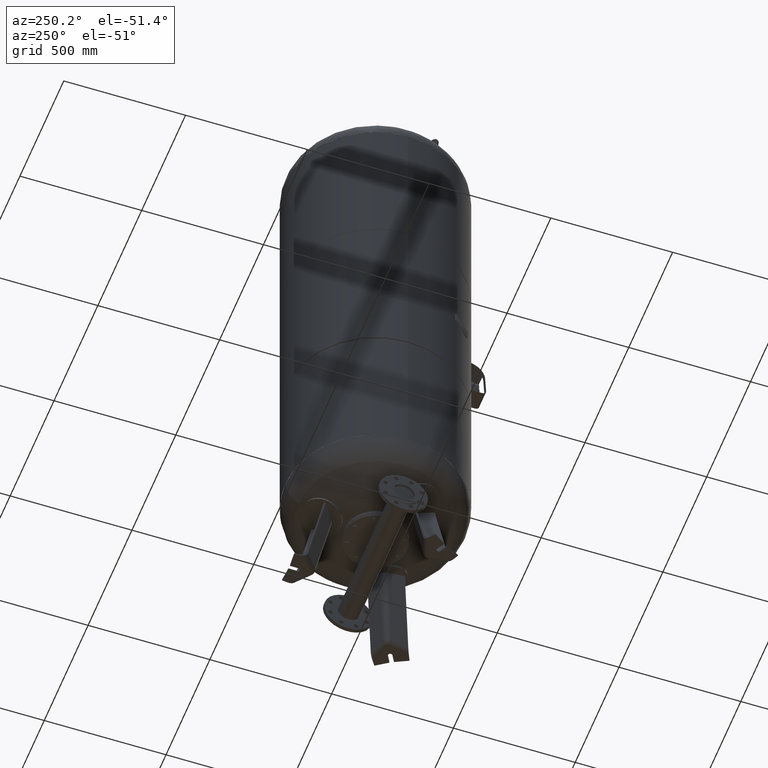
[diagram: clean part render]
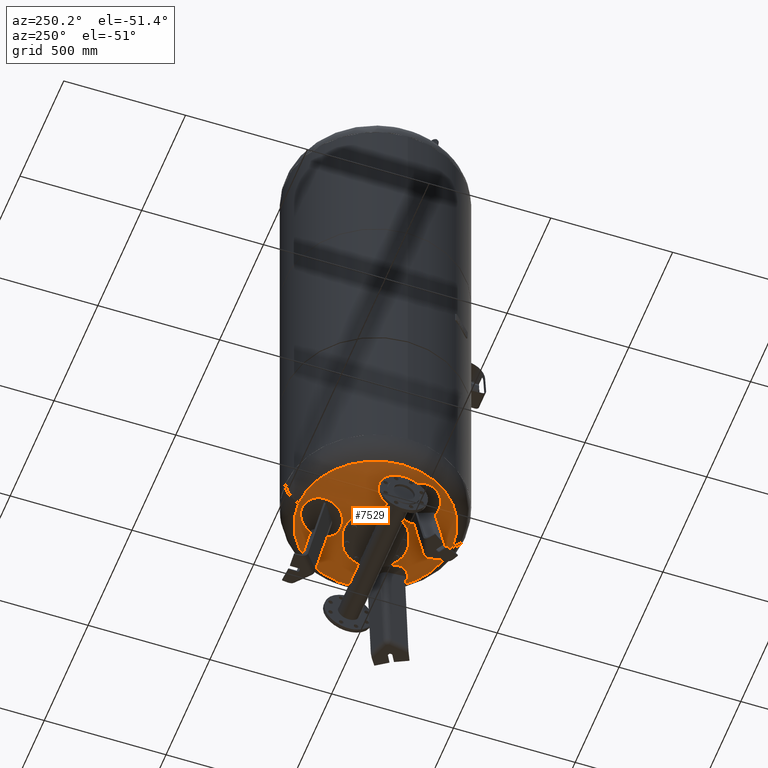
[diagram: same view with one face highlighted and labeled with its STEP entity id]
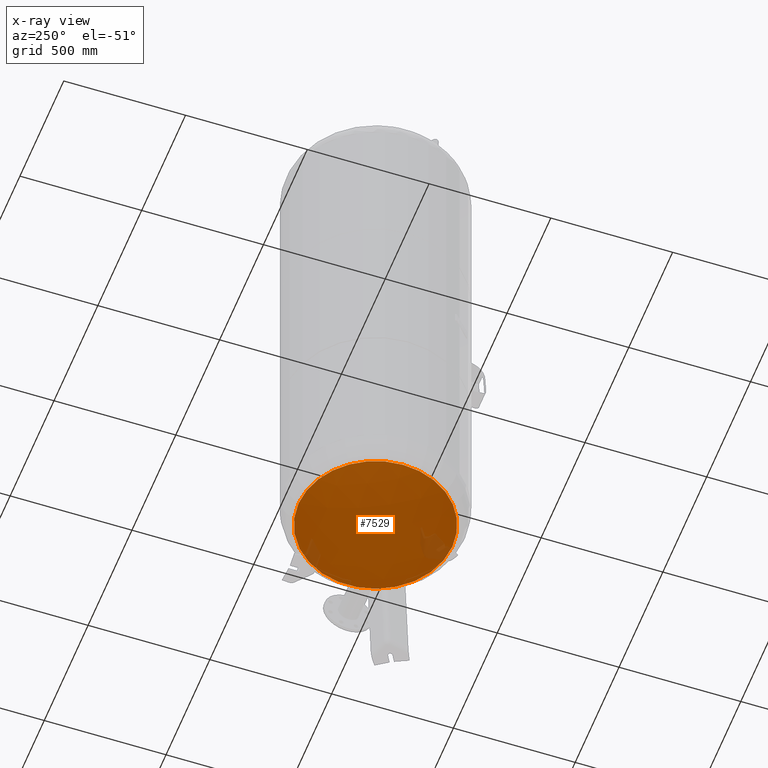
[diagram: x-ray of the same camera — body ghosted, the highlighted face saturated]
A machine part, auxiliary view. The second image highlights one B-rep face of the part: STEP entity #7529.
The next image is the same camera in x-ray: the body ghosted, the highlighted face saturated — about 5% of this face is hidden behind the body in this view.
In plain terms, the highlighted spherical surface has radius 594 mm.
Its self-contained STEP definition (entity closure, byte-faithful):
#7468=CARTESIAN_POINT('',(0.0,-315.931034482758610,413.985505725079410));
#7469=VERTEX_POINT('',#7468);
#7485=CARTESIAN_POINT('',(-3.868912E-014,315.931034482758610,413.985505725079630));
#7486=VERTEX_POINT('',#7485);
#7494=CARTESIAN_POINT('',(-315.931034482758610,-1.671377E-014,413.985505725079520));
#7495=VERTEX_POINT('',#7494);
#7496=CARTESIAN_POINT('',(0.0,-1.671377E-014,413.985505725079520));
#7497=DIRECTION('',(0.0,0.0,1.0));
#7498=DIRECTION('',(-1.0,0.0,0.0));
#7499=AXIS2_PLACEMENT_3D('',#7496,#7497,#7498);
#7500=CIRCLE('',#7499,315.931034482758610);
#7501=EDGE_CURVE('',#7486,#7495,#7500,.T.);
#7503=CARTESIAN_POINT('',(0.0,-1.671377E-014,413.985505725079520));
#7504=DIRECTION('',(0.0,0.0,1.0));
#7505=DIRECTION('',(-1.0,0.0,0.0));
#7506=AXIS2_PLACEMENT_3D('',#7503,#7504,#7505);
#7507=CIRCLE('',#7506,315.931034482758610);
#7508=EDGE_CURVE('',#7495,#7469,#7507,.T.);
#7513=CARTESIAN_POINT('',(0.0,-1.091160E-013,917.0));
#7514=DIRECTION('',(0.0,-1.0,0.0));
#7515=DIRECTION('',(1.0,0.0,0.0));
#7516=AXIS2_PLACEMENT_3D('',#7513,#7514,#7515);
#7517=SPHERICAL_SURFACE('',#7516,594.0);
#7518=ORIENTED_EDGE('',*,*,#7508,.F.);
#7519=ORIENTED_EDGE('',*,*,#7501,.F.);
#7520=CARTESIAN_POINT('',(0.0,-1.671377E-014,413.985505725079520));
#7521=DIRECTION('',(0.0,0.0,1.0));
#7522=DIRECTION('',(-1.0,0.0,0.0));
#7523=AXIS2_PLACEMENT_3D('',#7520,#7521,#7522);
#7524=CIRCLE('',#7523,315.931034482758610);
#7525=EDGE_CURVE('',#7469,#7486,#7524,.T.);
#7526=ORIENTED_EDGE('',*,*,#7525,.F.);
#7527=EDGE_LOOP('',(#7518,#7519,#7526));
#7528=FACE_OUTER_BOUND('',#7527,.T.);
#7529=ADVANCED_FACE('',(#7528),#7517,.T.);